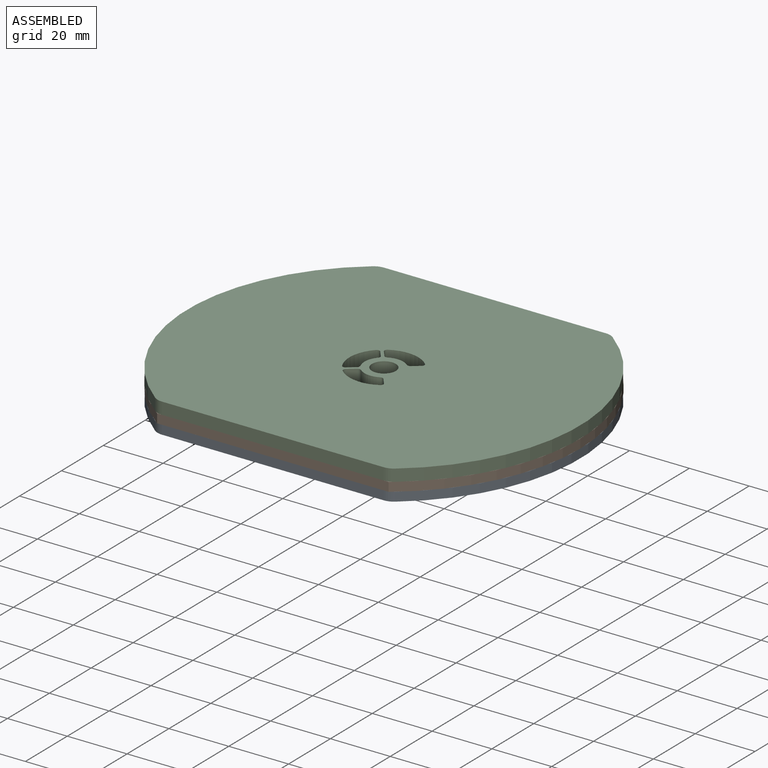
[diagram: assembled view]
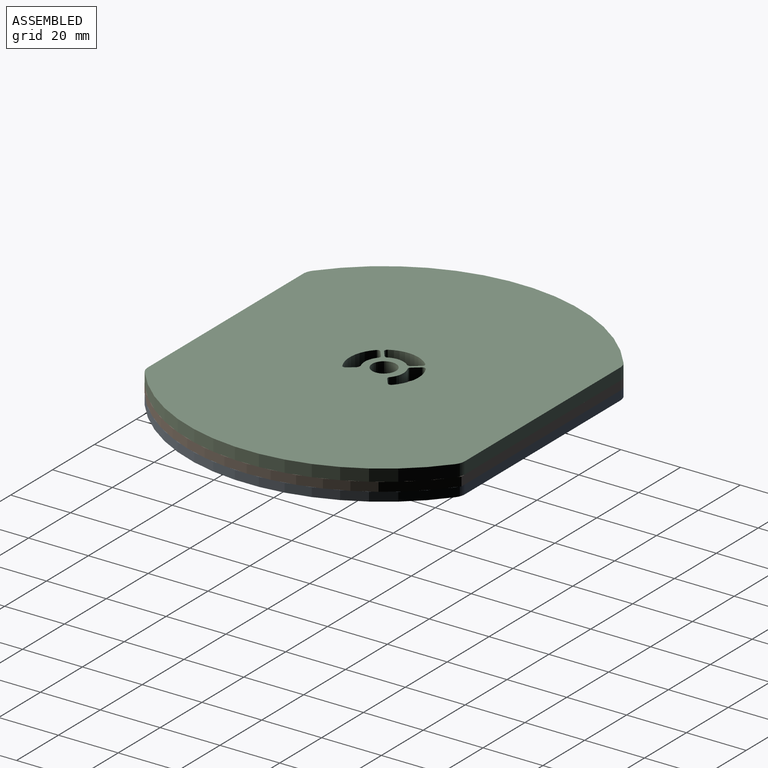
[diagram: assembled view, second angle]
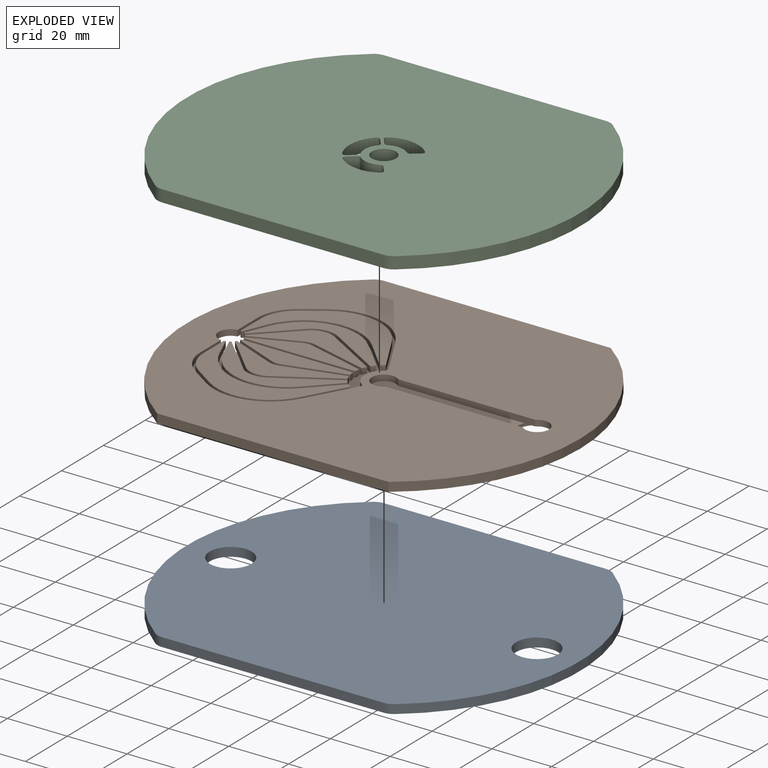
[diagram: exploded view]
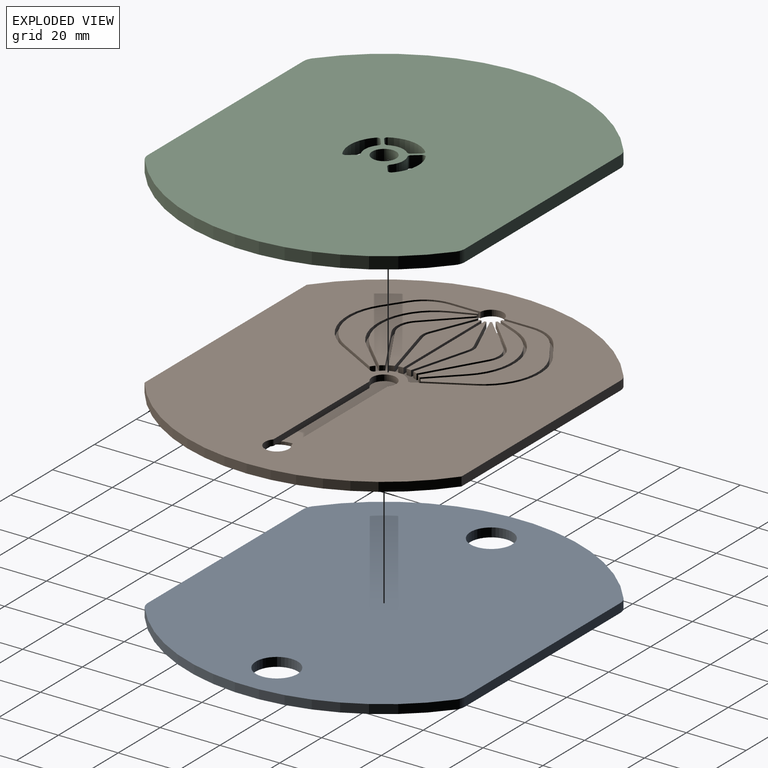
[diagram: exploded view, second angle]
ASSEMBLY  parts=3 mates=4
PART A: 12 faces, bbox 131.3x106x3 mm
  f0: plane 74.13x3mm, normal (0,-1,0), area 222.4mm2, adj f6,f7,f8,f11
  f1: cylinder r=65.66mm len=103.96mm, axis (0,0,1), area 359.9mm2, adj f6,f7,f8,f9
  f2: plane 74.13x3mm, normal (0,1,0), area 222.4mm2, adj f6,f7,f9,f10
  f3: cylinder r=7mm len=14mm, axis (0,0,1), area 131.9mm2, adj f6,f7
  f4: cylinder r=7mm len=14mm, axis (0,0,1), area 131.9mm2, adj f6,f7
  f5: cylinder r=65.66mm len=103.96mm, axis (0,0,1), area 359.9mm2, adj f6,f7,f10,f11
  f6: plane 131.32x106.04mm, normal (0,0,-1), area 11902.2mm2, adj f0,f1,f2,f3,f4,f5,f8,f9
  f7: plane 131.32x106.04mm, normal (0,0,1), area 11902.2mm2, adj f0,f1,f2,f3,f4,f5,f8,f9
  f8: cylinder r=5mm len=3.06mm, axis (0,0,1), area 9.9mm2, adj f0,f1,f6,f7
  f9: cylinder r=5mm len=3.06mm, axis (0,0,1), area 9.9mm2, adj f1,f2,f6,f7
  f10: cylinder r=5mm len=3.06mm, axis (0,0,1), area 9.9mm2, adj f2,f5,f6,f7
  f11: cylinder r=5mm len=3.06mm, axis (0,0,1), area 9.9mm2, adj f0,f5,f6,f7
PART B: 115 faces, bbox 131.3x106x3 mm
  f0: plane 64.65x48.66mm, normal (0,0,1), area 520.1mm2, adj f12,f13,f14,f15,f16,f17,f18,f19
  f1: plane 13.96x6.5mm, normal (0,0,-1), area 48.8mm2, adj f12,f24,f26,f30
  f2: plane 77.46x3mm, normal (0,-1,0), area 232.4mm2, adj f3,f27,f28,f32
  f3: cylinder r=65.66mm len=106.04mm, axis (0,0,-1), area 370.3mm2, adj f2,f4,f28,f32
  f4: plane 75.8x3mm, normal (0,1,0), area 227.4mm2, adj f3,f28,f32,f114
  f5: cylinder r=4mm len=8mm, axis (0,0,-1), area 35.4mm2, adj f6,f25,f28,f33
  f6: cylinder r=1mm len=2mm, axis (0,0,-1), area 1.3mm2, adj f5,f7,f28,f33
  f7: plane 45.23x2mm, normal (0,-1,0), area 90.5mm2, adj f6,f8,f28,f29,f33
  f8: cylinder r=1mm len=2mm, axis (0,0,-1), area 1.3mm2, adj f7,f9,f28,f29
  f9: cylinder r=4mm len=8mm, axis (0,0,-1), area 35.4mm2, adj f8,f10,f28,f29
  f10: cylinder r=1mm len=2mm, axis (0,0,-1), area 1.3mm2, adj f9,f11,f28,f29
  f11: plane 45.23x2mm, normal (0,1,0), area 90.5mm2, adj f10,f25,f28,f29,f33
  f12: plane 9.69x2mm, normal (1,0,0), area 19.4mm2, adj f0,f1,f13,f26,f28
  f13: cylinder r=13mm len=10.75mm, axis (0,0,-1), area 25.3mm2, adj f0,f12,f14,f28
  f14: plane 6.82x4.63mm, normal (0.56,-0.83,0), area 16.5mm2, adj f0,f13,f15,f28
  f15: cylinder r=19mm len=27.29mm, axis (0,0,-1), area 63.1mm2, adj f0,f14,f16,f28
  f16: plane 15.75x8.73mm, normal (-0.87,-0.48,0), area 36mm2, adj f0,f15,f17,f28
  f17: cylinder r=1mm len=2mm, axis (0,0,-1), area 3mm2, adj f0,f16,f18,f28
  f18: cylinder r=6.5mm len=10.92mm, axis (0,0,-1), area 25.9mm2, adj f0,f17,f19,f28
  f19: cylinder r=1mm len=2mm, axis (0,0,-1), area 3mm2, adj f0,f18,f20,f28
  f20: plane 15.75x8.73mm, normal (-0.87,0.48,0), area 36mm2, adj f0,f19,f21,f28
  f21: cylinder r=19mm len=27.29mm, axis (0,0,-1), area 63.1mm2, adj f0,f20,f22,f28
  f22: plane 6.82x4.63mm, normal (0.56,0.83,0), area 16.5mm2, adj f0,f21,f23,f28
  f23: cylinder r=13mm len=10.75mm, axis (0,0,-1), area 25.3mm2, adj f0,f22,f24,f28
  f24: plane 9.69x2mm, normal (1,0,0), area 19.4mm2, adj f0,f1,f23,f26,f28
  f25: cylinder r=1mm len=2mm, axis (0,0,-1), area 1.3mm2, adj f5,f11,f28,f33
  f26: cylinder r=4mm len=7.94mm, axis (0,0,-1), area 23.1mm2, adj f1,f12,f24,f28
  f27: cylinder r=65.66mm len=105mm, axis (0,0,-1), area 365.1mm2, adj f2,f28,f32,f114
  f28: plane 131.32x106.04mm, normal (0,0,1), area 9341.1mm2, adj f2,f3,f4,f5,f6,f7,f8,f9
  f29: plane 14x13.32mm, normal (0,0,-1), area 84.5mm2, adj f7,f8,f9,f10,f11,f31
  f30: cylinder r=7mm len=14mm, axis (0,0,1), area 44mm2, adj f0,f1,f32,f45,f55,f65,f73,f81
  f31: cylinder r=7mm len=14mm, axis (0,0,1), area 44mm2, adj f29,f32,f33
  f32: plane 131.32x106.04mm, normal (0,0,-1), area 11903.1mm2, adj f2,f3,f4,f27,f30,f31,f114
  f33: plane 48.91x8mm, normal (0,0,1), area 295.5mm2, adj f5,f6,f7,f11,f25,f31
  f34: cylinder r=12mm len=9.93mm, axis (0,0,-1), area 23.4mm2, adj f0,f35,f43,f44
  f35: plane 9.69x2mm, normal (-1,0,0), area 19.4mm2, adj f0,f34,f36,f44,f45
  f36: cylinder r=4mm len=2mm, axis (0,0,-1), area 1.1mm2, adj f35,f37,f44,f45
  f37: plane 7.29x3.02mm, normal (0.92,-0.38,0), area 15.8mm2, adj f0,f36,f38,f44,f45
  f38: cylinder r=19mm len=31.16mm, axis (0,0,-1), area 75.1mm2, adj f0,f37,f39,f44
  f39: plane 9.63x9.38mm, normal (-0.72,-0.7,0), area 26.9mm2, adj f0,f38,f40,f44
  f40: cylinder r=10mm len=2mm, axis (0,0,-1), area 3.3mm2, adj f0,f39,f41,f44
  f41: plane 13.56x7.52mm, normal (0.87,0.48,0), area 31mm2, adj f0,f40,f42,f44
  f42: cylinder r=18mm len=25.86mm, axis (0,0,-1), area 59.8mm2, adj f0,f41,f43,f44
  f43: plane 6.82x4.63mm, normal (-0.56,0.83,0), area 16.5mm2, adj f0,f34,f42,f44
  f44: plane 45.45x27.47mm, normal (0,0,1), area 375mm2, adj f34,f35,f36,f37,f38,f39,f40,f41
  f45: plane 3.12x1.71mm, normal (0,0,-1), area 3.5mm2, adj f30,f35,f36,f37
  f46: plane 12.08x12.08mm, normal (0.71,-0.71,0), area 34.2mm2, adj f0,f47,f53,f54,f55
  f47: cylinder r=8mm len=9.72mm, axis (0,0,-1), area 21.1mm2, adj f0,f46,f48,f54
  f48: plane 18.63x10.97mm, normal (-0.51,-0.86,0), area 43.2mm2, adj f0,f47,f49,f54
  f49: cylinder r=10mm len=2mm, axis (0,0,-1), area 3.3mm2, adj f0,f48,f50,f54
  f50: plane 9.63x9.38mm, normal (0.72,0.7,0), area 26.9mm2, adj f0,f49,f51,f54
  f51: cylinder r=18mm len=29.52mm, axis (0,0,-1), area 71.2mm2, adj f0,f50,f52,f54
  f52: plane 7.29x3.02mm, normal (-0.92,0.38,0), area 15.8mm2, adj f0,f51,f53,f54,f55
  f53: cylinder r=4mm len=2mm, axis (0,0,-1), area 1.1mm2, adj f46,f52,f54,f55
  f54: plane 41.92x18.71mm, normal (0,0,1), area 214.3mm2, adj f46,f47,f48,f49,f50,f51,f52,f53
  f55: plane 3.1x2.6mm, normal (0,0,-1), area 3.5mm2, adj f30,f46,f52,f53
  f56: cylinder r=4mm len=2mm, axis (0,0,-1), area 1.1mm2, adj f57,f63,f64,f65
  f57: plane 14.93x6.18mm, normal (0.38,-0.92,0), area 32.3mm2, adj f0,f56,f58,f64,f65
  f58: cylinder r=6mm len=3.87mm, axis (0,0,-1), area 7.9mm2, adj f0,f57,f59,f64
  f59: plane 19.45x5.3mm, normal (-0.26,-0.96,0), area 40.3mm2, adj f0,f58,f60,f64
  f60: cylinder r=10mm len=2mm, axis (0,0,-1), area 3.3mm2, adj f0,f59,f61,f64
  f61: plane 18.63x10.97mm, normal (0.51,0.86,0), area 43.2mm2, adj f0,f60,f62,f64
  f62: cylinder r=7mm len=8.5mm, axis (0,0,-1), area 18.4mm2, adj f0,f61,f63,f64
  f63: plane 12.08x12.08mm, normal (-0.71,0.71,0), area 34.2mm2, adj f0,f56,f62,f64,f65
  f64: plane 39.21x14.6mm, normal (0,0,1), area 204mm2, adj f56,f57,f58,f59,f60,f61,f62,f63
  f65: plane 3.1x2.6mm, normal (0,0,-1), area 3.5mm2, adj f30,f56,f57,f63
  f66: cylinder r=5mm len=3.23mm, axis (0,0,-1), area 6.6mm2, adj f0,f67,f71,f72
  f67: plane 14.93x6.18mm, normal (-0.38,0.92,0), area 32.3mm2, adj f0,f66,f68,f72,f73
  f68: cylinder r=4mm len=2mm, axis (0,0,-1), area 1.1mm2, adj f67,f69,f72,f73
  f69: plane 37.27x2mm, normal (0,-1,0), area 74.5mm2, adj f0,f68,f70,f72,f73
  f70: cylinder r=10mm len=2mm, axis (0,0,-1), area 3.3mm2, adj f0,f69,f71,f72
  f71: plane 19.45x5.3mm, normal (0.26,0.96,0), area 40.3mm2, adj f0,f66,f70,f72
  f72: plane 37.61x7.12mm, normal (0,0,1), area 160.4mm2, adj f66,f67,f68,f69,f70,f71
  f73: plane 3.12x1.71mm, normal (0,0,-1), area 3.5mm2, adj f30,f67,f68,f69
  f74: plane 14.93x6.18mm, normal (-0.38,-0.92,0), area 32.3mm2, adj f0,f75,f79,f80,f81
  f75: cylinder r=5mm len=3.23mm, axis (0,0,-1), area 6.6mm2, adj f0,f74,f76,f80
  f76: plane 19.45x5.3mm, normal (0.26,-0.96,0), area 40.3mm2, adj f0,f75,f77,f80
  f77: cylinder r=10mm len=2mm, axis (0,0,-1), area 3.3mm2, adj f0,f76,f78,f80
  f78: plane 37.27x2mm, normal (0,1,0), area 74.5mm2, adj f0,f77,f79,f80,f81
  f79: cylinder r=4mm len=2mm, axis (0,0,-1), area 1.1mm2, adj f74,f78,f80,f81
  f80: plane 37.61x7.12mm, normal (0,0,1), area 160.4mm2, adj f74,f75,f76,f77,f78,f79
  f81: plane 3.12x1.71mm, normal (0,0,-1), area 3.5mm2, adj f30,f74,f78,f79
  f82: cylinder r=4mm len=2mm, axis (0,0,-1), area 1.1mm2, adj f83,f89,f90,f91
  f83: plane 12.08x12.08mm, normal (-0.71,-0.71,0), area 34.2mm2, adj f0,f82,f84,f90,f91
  f84: cylinder r=7mm len=8.5mm, axis (0,0,-1), area 18.4mm2, adj f0,f83,f85,f90
  f85: plane 18.63x10.97mm, normal (0.51,-0.86,0), area 43.2mm2, adj f0,f84,f86,f90
  f86: cylinder r=10mm len=2mm, axis (0,0,-1), area 3.3mm2, adj f0,f85,f87,f90
  f87: plane 19.45x5.3mm, normal (-0.26,0.96,0), area 40.3mm2, adj f0,f86,f88,f90
  f88: cylinder r=6mm len=3.87mm, axis (0,0,-1), area 7.9mm2, adj f0,f87,f89,f90
  f89: plane 14.93x6.18mm, normal (0.38,0.92,0), area 32.3mm2, adj f0,f82,f88,f90,f91
  f90: plane 39.21x14.6mm, normal (0,0,1), area 204mm2, adj f82,f83,f84,f85,f86,f87,f88,f89
  f91: plane 3.1x2.6mm, normal (0,0,-1), area 3.5mm2, adj f30,f82,f83,f89
  f92: cylinder r=4mm len=2mm, axis (0,0,-1), area 1.1mm2, adj f93,f99,f100,f101
  f93: plane 7.29x3.02mm, normal (-0.92,-0.38,0), area 15.8mm2, adj f0,f92,f94,f100,f101
  f94: cylinder r=18mm len=29.52mm, axis (0,0,-1), area 71.2mm2, adj f0,f93,f95,f100
  f95: plane 9.63x9.38mm, normal (0.72,-0.7,0), area 26.9mm2, adj f0,f94,f96,f100
  f96: cylinder r=10mm len=2mm, axis (0,0,-1), area 3.3mm2, adj f0,f95,f97,f100
  f97: plane 18.63x10.97mm, normal (-0.51,0.86,0), area 43.2mm2, adj f0,f96,f98,f100
  f98: cylinder r=8mm len=9.72mm, axis (0,0,-1), area 21.1mm2, adj f0,f97,f99,f100
  f99: plane 12.08x12.08mm, normal (0.71,0.71,0), area 34.2mm2, adj f0,f92,f98,f100,f101
  f100: plane 41.92x18.71mm, normal (0,0,1), area 214.3mm2, adj f92,f93,f94,f95,f96,f97,f98,f99
  f101: plane 3.1x2.6mm, normal (0,0,-1), area 3.5mm2, adj f30,f92,f93,f99
  f102: plane 9.69x2mm, normal (-1,0,0), area 19.4mm2, adj f0,f103,f111,f112,f113
  f103: cylinder r=12mm len=9.93mm, axis (0,0,-1), area 23.4mm2, adj f0,f102,f104,f112
  f104: plane 6.82x4.63mm, normal (-0.56,-0.83,0), area 16.5mm2, adj f0,f103,f105,f112
  f105: cylinder r=18mm len=25.86mm, axis (0,0,-1), area 59.8mm2, adj f0,f104,f106,f112
  f106: plane 13.56x7.52mm, normal (0.87,-0.48,0), area 31mm2, adj f0,f105,f107,f112
  f107: cylinder r=10mm len=2mm, axis (0,0,-1), area 3.3mm2, adj f0,f106,f108,f112
  f108: plane 9.63x9.38mm, normal (-0.72,0.7,0), area 26.9mm2, adj f0,f107,f109,f112
  f109: cylinder r=19mm len=31.16mm, axis (0,0,-1), area 75.1mm2, adj f0,f108,f110,f112
  f110: plane 7.29x3.02mm, normal (0.92,0.38,0), area 15.8mm2, adj f0,f109,f111,f112,f113
  f111: cylinder r=4mm len=2mm, axis (0,0,-1), area 1.1mm2, adj f102,f110,f112,f113
  f112: plane 45.45x27.47mm, normal (0,0,1), area 375mm2, adj f102,f103,f104,f105,f106,f107,f108,f109
  f113: plane 3.12x1.71mm, normal (0,0,-1), area 3.5mm2, adj f30,f102,f110,f111
  f114: cylinder r=5mm len=3.06mm, axis (0,0,-1), area 9.9mm2, adj f4,f27,f28,f32
PART C: 35 faces, bbox 131.3x106x4 mm
  f0: plane 74.13x4mm, normal (0,-1,0), area 296.5mm2, adj f29,f30,f31,f34
  f1: cylinder r=65.66mm len=103.96mm, axis (0,0,-1), area 479.8mm2, adj f29,f30,f31,f32
  f2: plane 74.13x4mm, normal (0,1,0), area 296.5mm2, adj f29,f30,f32,f33
  f3: cylinder r=1mm len=4mm, axis (0,0,-1), area 6.9mm2, adj f4,f24,f29,f30
  f4: cylinder r=11.5mm len=13.67mm, axis (0,0,-1), area 59.1mm2, adj f3,f5,f29,f30
  f5: cylinder r=1mm len=4mm, axis (0,0,-1), area 6.9mm2, adj f4,f6,f29,f30
  f6: plane 4x2.4mm, normal (-0.61,0.79,0), area 12.2mm2, adj f5,f7,f29,f30
  f7: cylinder r=1mm len=4mm, axis (0,0,-1), area 5.5mm2, adj f6,f8,f29,f30
  f8: cylinder r=6.5mm len=7.11mm, axis (0,0,-1), area 30.4mm2, adj f7,f9,f29,f30
  f9: cylinder r=1mm len=4mm, axis (0,0,-1), area 5.5mm2, adj f8,f24,f29,f30
  f10: cylinder r=1mm len=4mm, axis (0,0,-1), area 5.5mm2, adj f11,f25,f29,f30
  f11: plane 4x2.4mm, normal (-0.79,-0.61,0), area 12.2mm2, adj f10,f12,f29,f30
  f12: cylinder r=1mm len=4mm, axis (0,0,-1), area 6.9mm2, adj f11,f13,f29,f30
  f13: cylinder r=11.5mm len=13.67mm, axis (0,0,-1), area 59.1mm2, adj f12,f14,f29,f30
  f14: cylinder r=1mm len=4mm, axis (0,0,-1), area 6.9mm2, adj f13,f15,f29,f30
  f15: plane 4x2.4mm, normal (0.61,-0.79,0), area 12.2mm2, adj f14,f16,f29,f30
  f16: cylinder r=1mm len=4mm, axis (0,0,-1), area 5.5mm2, adj f15,f25,f29,f30
  f17: cylinder r=1mm len=4mm, axis (0,0,-1), area 5.5mm2, adj f18,f26,f29,f30
  f18: plane 4x2.4mm, normal (-0.61,0.79,0), area 12.2mm2, adj f17,f19,f29,f30
  f19: cylinder r=1mm len=4mm, axis (0,0,-1), area 6.9mm2, adj f18,f20,f29,f30
  f20: cylinder r=11.5mm len=13.67mm, axis (0,0,-1), area 59.1mm2, adj f19,f21,f29,f30
  f21: cylinder r=1mm len=4mm, axis (0,0,-1), area 6.9mm2, adj f20,f22,f29,f30
  f22: plane 4x2.4mm, normal (-0.79,-0.61,0), area 12.2mm2, adj f21,f23,f29,f30
  f23: cylinder r=1mm len=4mm, axis (0,0,-1), area 5.5mm2, adj f22,f26,f29,f30
  f24: plane 4x2.4mm, normal (0.79,0.61,0), area 12.2mm2, adj f3,f9,f29,f30
  f25: cylinder r=6.5mm len=7.11mm, axis (0,0,-1), area 30.4mm2, adj f10,f16,f29,f30
  f26: cylinder r=6.5mm len=7.11mm, axis (0,0,-1), area 30.4mm2, adj f17,f23,f29,f30
  f27: cylinder r=4mm len=8mm, axis (0,0,-1), area 100.5mm2, adj f29,f30
  f28: cylinder r=65.66mm len=103.96mm, axis (0,0,-1), area 479.8mm2, adj f29,f30,f33,f34
  f29: plane 131.32x106.04mm, normal (0,0,1), area 11965.3mm2, adj f0,f1,f2,f3,f4,f5,f6,f7
  f30: plane 131.32x106.04mm, normal (0,0,-1), area 11965.3mm2, adj f0,f1,f2,f3,f4,f5,f6,f7
  f31: cylinder r=5mm len=4mm, axis (0,0,-1), area 13.1mm2, adj f0,f1,f29,f30
  f32: cylinder r=5mm len=4mm, axis (0,0,-1), area 13.1mm2, adj f1,f2,f29,f30
  f33: cylinder r=5mm len=4mm, axis (0,0,-1), area 13.1mm2, adj f2,f28,f29,f30
  f34: cylinder r=5mm len=4mm, axis (0,0,-1), area 13.1mm2, adj f0,f28,f29,f30
PLACE A t=(8.35,-9.25,-13.81)mm
PLACE B t=(8.35,-9.25,-12.81)mm
PLACE C t=(8.35,-9.25,-10.81)mm
MATE planar C.f30 <-> B.f28  axis (0,0,-1) through (8.39,-9.26,-10.81)mm
MATE cylindrical A.f3 <-> B.f26  axis (0,0,1) through (-42.88,-9.25,-15.31)mm
MATE planar B.f70 <-> A.f1  axis (0,0,-1) through (8.35,-9.25,-13.81)mm
MATE cylindrical C.f27 <-> B.f5  axis (0,0,-1) through (8.35,-9.25,-8.81)mm
